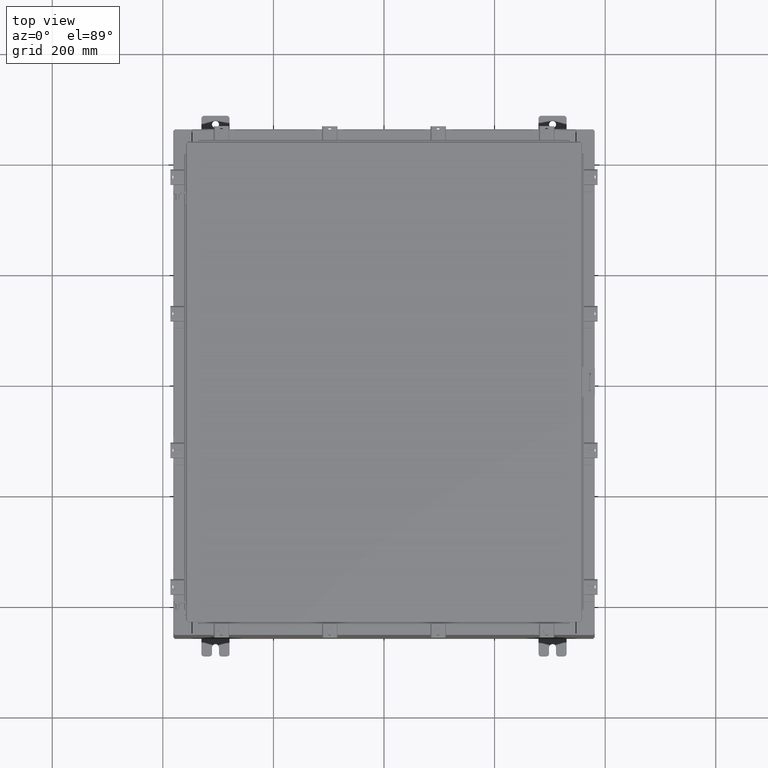
[diagram: clean part render]
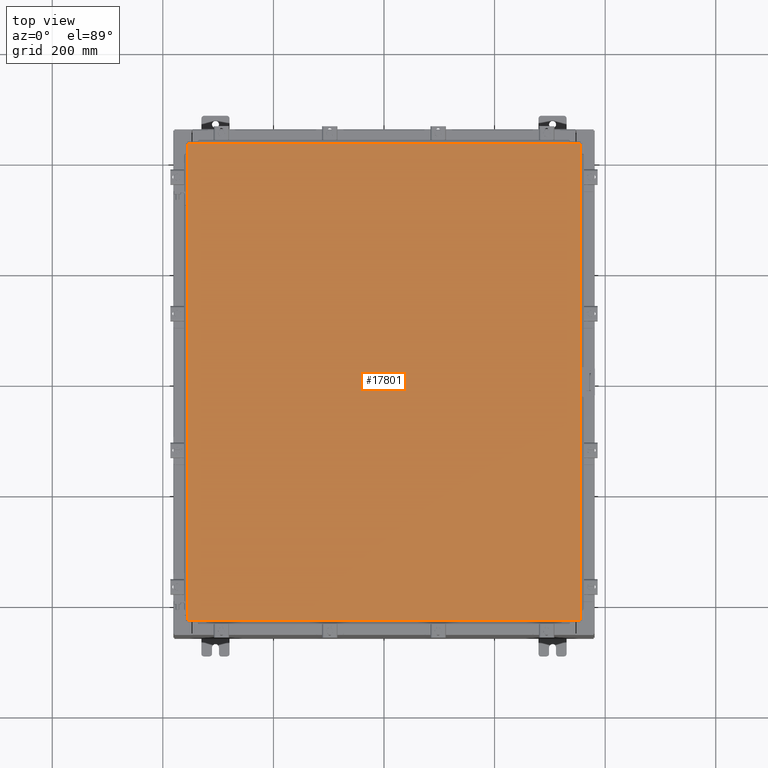
[diagram: same view with one face highlighted and labeled with its STEP entity id]
A machine part, top view. The second image highlights one B-rep face of the part: STEP entity #17801.
In plain terms, the highlighted planar face has unit normal (0, 0, -1).
Its self-contained STEP definition (entity closure, byte-faithful):
#850 = VERTEX_POINT ( 'NONE', #24340 ) ;
#2036 = VERTEX_POINT ( 'NONE', #23818 ) ;
#2158 = CARTESIAN_POINT ( 'NONE',  ( -13.99029999999999800, -17.00630000000000300, -2.048885995248197400E-016 ) ) ;
#2731 = AXIS2_PLACEMENT_3D ( 'NONE', #13091, #9376, #22572 ) ;
#2940 = EDGE_LOOP ( 'NONE', ( #12607, #17273, #3955, #17716 ) ) ;
#3955 = ORIENTED_EDGE ( 'NONE', *, *, #11245, .T. ) ;
#4906 = CARTESIAN_POINT ( 'NONE',  ( 13.99029999999999800, -17.00630000000000700, -2.048885995248197400E-016 ) ) ;
#5314 = VECTOR ( 'NONE', #5968, 39.37007874015748100 ) ;
#5435 = LINE ( 'NONE', #4906, #8094 ) ;
#5773 = VECTOR ( 'NONE', #23857, 39.37007874015748100 ) ;
#5855 = EDGE_CURVE ( 'NONE', #18574, #850, #16200, .T. ) ;
#5968 = DIRECTION ( 'NONE',  ( 1.000000000000000000, -0.0000000000000000000, -0.0000000000000000000 ) ) ;
#6726 = FACE_OUTER_BOUND ( 'NONE', #2940, .T. ) ;
#6818 = DIRECTION ( 'NONE',  ( 0.0000000000000000000, 1.000000000000000000, 0.0000000000000000000 ) ) ;
#8094 = VECTOR ( 'NONE', #6818, 39.37007874015748100 ) ;
#9376 = DIRECTION ( 'NONE',  ( 0.0000000000000000000, 0.0000000000000000000, -1.000000000000000000 ) ) ;
#10839 = DIRECTION ( 'NONE',  ( 0.0000000000000000000, -1.000000000000000000, 0.0000000000000000000 ) ) ;
#11245 = EDGE_CURVE ( 'NONE', #16101, #18574, #20284, .T. ) ;
#11788 = VECTOR ( 'NONE', #10839, 39.37007874015748100 ) ;
#12607 = ORIENTED_EDGE ( 'NONE', *, *, #23272, .T. ) ;
#13091 = CARTESIAN_POINT ( 'NONE',  ( 0.0000000000000000000, 0.0000000000000000000, 0.0000000000000000000 ) ) ;
#13908 = CARTESIAN_POINT ( 'NONE',  ( 13.99029999999999600, 17.00629999999999600, 8.878505979408856000E-016 ) ) ;
#16101 = VERTEX_POINT ( 'NONE', #13908 ) ;
#16200 = LINE ( 'NONE', #22134, #11788 ) ;
#17273 = ORIENTED_EDGE ( 'NONE', *, *, #20759, .T. ) ;
#17716 = ORIENTED_EDGE ( 'NONE', *, *, #5855, .T. ) ;
#17801 = ADVANCED_FACE ( 'NONE', ( #6726 ), #20679, .F. ) ;
#18574 = VERTEX_POINT ( 'NONE', #20652 ) ;
#19242 = LINE ( 'NONE', #2158, #5314 ) ;
#20284 = LINE ( 'NONE', #21958, #5773 ) ;
#20652 = CARTESIAN_POINT ( 'NONE',  ( -13.99030000000000000, 17.00630000000000000, -2.048885995248197400E-016 ) ) ;
#20679 = PLANE ( 'NONE',  #2731 ) ;
#20759 = EDGE_CURVE ( 'NONE', #2036, #16101, #5435, .T. ) ;
#21958 = CARTESIAN_POINT ( 'NONE',  ( 13.99029999999999600, 17.00629999999999600, 8.878505979408856000E-016 ) ) ;
#22134 = CARTESIAN_POINT ( 'NONE',  ( -13.99030000000000000, 17.00630000000000000, -2.048885995248197400E-016 ) ) ;
#22572 = DIRECTION ( 'NONE',  ( -1.000000000000000000, 0.0000000000000000000, -0.0000000000000000000 ) ) ;
#23272 = EDGE_CURVE ( 'NONE', #850, #2036, #19242, .T. ) ;
#23818 = CARTESIAN_POINT ( 'NONE',  ( 13.99029999999999800, -17.00630000000000700, -2.048885995248197400E-016 ) ) ;
#23857 = DIRECTION ( 'NONE',  ( -1.000000000000000000, -0.0000000000000000000, -0.0000000000000000000 ) ) ;
#24340 = CARTESIAN_POINT ( 'NONE',  ( -13.99029999999999800, -17.00630000000000300, -2.048885995248197400E-016 ) ) ;